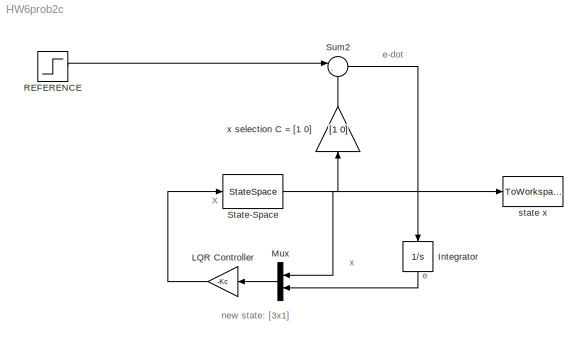
MODEL HW6prob2c
KIND model
BLOCK [Integrator] Integrator
  Ports = [1, 1]
  SID = 39
BLOCK [Gain] LQR Controller
  Gain = -Kc
  Multiplication = Matrix(K*u)
  OutDataTypeStr = Inherit: Inherit via internal rule
  ParamDataTypeStr = Inherit: Inherit via internal rule
  SID = 16
  SaturateOnIntegerOverflow = off
BLOCK [Mux] Mux
  DisplayOption = bar
  Inputs = 2
  Ports = [2, 1]
  SID = 40
BLOCK [Step] REFERENCE
  SID = 30
  SampleTime = 0
BLOCK [StateSpace] State-Space
  A = A+eye(2,2)*uncert
  B = B
  C = eye(2,2)
  D = [0;0]
  SID = 52
BLOCK [Sum] Sum2
  IconShape = round
  InputSameDT = off
  Inputs = |-+
  OutDataTypeStr = Inherit: Inherit via internal rule
  Ports = [2, 1]
  SID = 38
  SaturateOnIntegerOverflow = off
BLOCK [ToWorkspace] state x
  MaxDataPoints = inf
  Ports = [1]
  SID = 45
  SampleTime = -1
  SaveFormat = Array
  VariableName = simout
BLOCK [Gain] x selection C = [1 0]
  Gain = [1 0]
  Multiplication = Matrix(K*u)
  OutDataTypeStr = Inherit: Inherit via internal rule
  ParamDataTypeStr = Inherit: Inherit via internal rule
  SID = 37
  SaturateOnIntegerOverflow = off
ANNOTATION (root): X
ANNOTATION (root): e
ANNOTATION (root): e-dot
ANNOTATION (root): new state: [3x1]
ANNOTATION (root): x
LINE Integrator:1 -> Mux:2
LINE LQR Controller:1 -> State-Space:1
LINE Mux:1 -> LQR Controller:1
LINE REFERENCE:1 -> Sum2:1
NET State-Space:1 -> Mux:1, state x:1, x selection C = [1 0]:1
LINE Sum2:1 -> Integrator:1
LINE x selection C = [1 0]:1 -> Sum2:2
note: NET lines group one-source signal fan-out (src -> all destinations, sorted); 1:1 wires keep LINE
